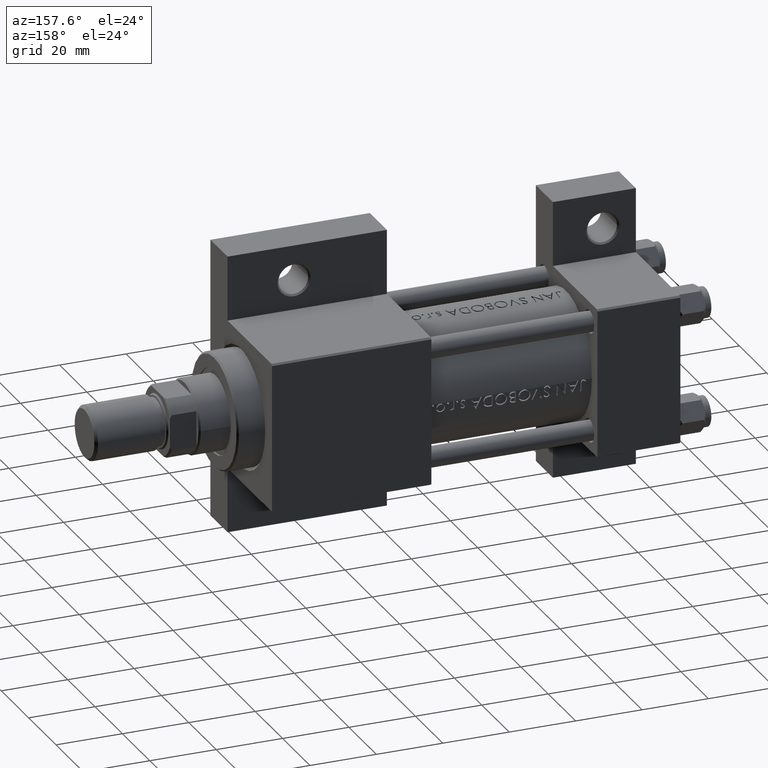
[diagram: clean part render]
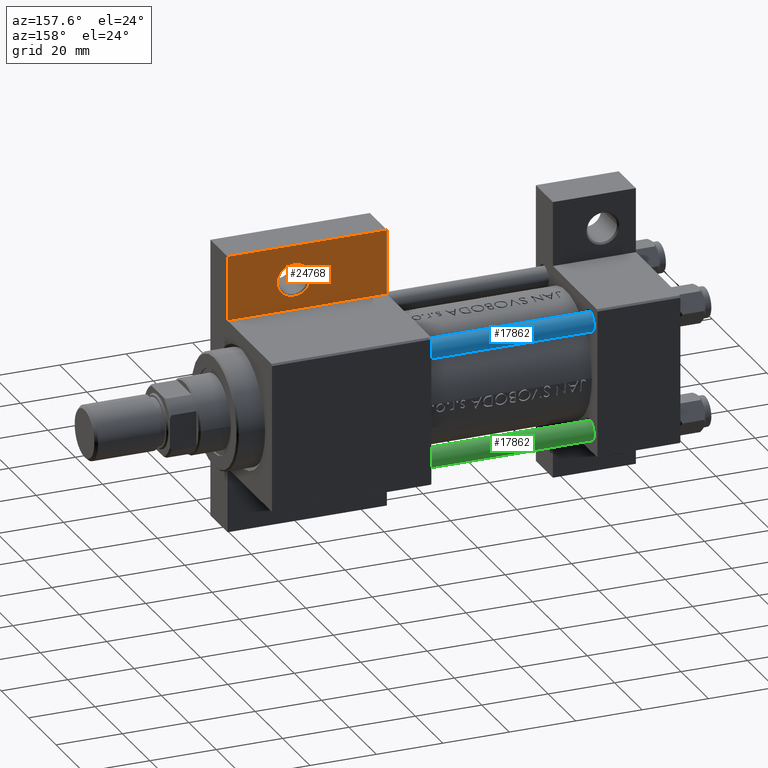
[diagram: same view with three faces highlighted in distinct colors, each labeled with its STEP entity id]
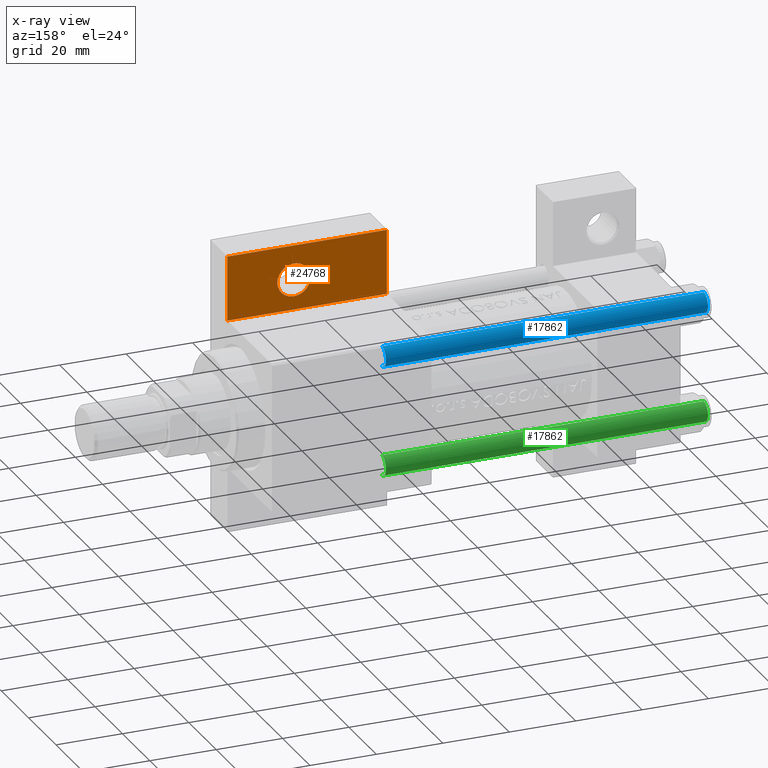
[diagram: x-ray of the same camera — body ghosted, the three highlighted faces saturated]
A machine part, auxiliary view with three faces highlighted in distinct colors.
The next image is the same camera in x-ray (body ghosted, the three faces saturated) — at least one of them is partly hidden behind the body in this view.
Their STEP definitions:

[orange] entity #24768 — the highlighted planar face has unit normal (0, -1, 0).
#1921 = EDGE_LOOP ( 'NONE', ( #2418, #32446, #43320, #26246 ) ) ;
#2033 = EDGE_CURVE ( 'NONE', #25079, #34180, #46135, .T. ) ;
#2090 = LINE ( 'NONE', #27820, #14011 ) ;
#2418 = ORIENTED_EDGE ( 'NONE', *, *, #42010, .F. ) ;
#2955 = DIRECTION ( 'NONE',  ( 0.000000000000000000, 0.000000000000000000, -1.000000000000000000 ) ) ;
#6773 = DIRECTION ( 'NONE',  ( -0.000000000000000000, -1.000000000000000000, -0.000000000000000000 ) ) ;
#8109 = AXIS2_PLACEMENT_3D ( 'NONE', #23204, #12511, #38006 ) ;
#8558 = CIRCLE ( 'NONE', #12432, 4.999500000000073108 ) ;
#8729 = VECTOR ( 'NONE', #6773, 1000.000000000000000 ) ;
#8855 = VERTEX_POINT ( 'NONE', #24066 ) ;
#8930 = EDGE_CURVE ( 'NONE', #38207, #8855, #21719, .T. ) ;
#8989 = EDGE_CURVE ( 'NONE', #8855, #38207, #8558, .T. ) ;
#9516 = CARTESIAN_POINT ( 'NONE',  ( 98.00049999999993133, -31.50000000000000000, -9.999999999999998224 ) ) ;
#10865 = LINE ( 'NONE', #14529, #8729 ) ;
#12432 = AXIS2_PLACEMENT_3D ( 'NONE', #14128, #2955, #17527 ) ;
#12511 = DIRECTION ( 'NONE',  ( 0.000000000000000000, 0.000000000000000000, -1.000000000000000000 ) ) ;
#12656 = EDGE_CURVE ( 'NONE', #36923, #29196, #2090, .T. ) ;
#12707 = VECTOR ( 'NONE', #41621, 1000.000000000000000 ) ;
#14011 = VECTOR ( 'NONE', #17624, 1000.000000000000000 ) ;
#14128 = CARTESIAN_POINT ( 'NONE',  ( 103.0000000000000142, -31.50000000000000000, -9.999999999999998224 ) ) ;
#14529 = CARTESIAN_POINT ( 'NONE',  ( 122.9999999999999858, -42.00000000000000711, -9.999999999999998224 ) ) ;
#15877 = CARTESIAN_POINT ( 'NONE',  ( 75.00000000000000000, -42.00000000000000711, -9.999999999999998224 ) ) ;
#17527 = DIRECTION ( 'NONE',  ( -1.000000000000000000, 0.000000000000000000, 0.000000000000000000 ) ) ;
#17624 = DIRECTION ( 'NONE',  ( -1.000000000000000000, -0.000000000000000000, -0.000000000000000000 ) ) ;
#17640 = ORIENTED_EDGE ( 'NONE', *, *, #8930, .T. ) ;
#18082 = VECTOR ( 'NONE', #27904, 1000.000000000000000 ) ;
#21719 = CIRCLE ( 'NONE', #40340, 4.999500000000073108 ) ;
#23111 = CARTESIAN_POINT ( 'NONE',  ( 75.00000000000000000, -42.00000000000000711, -9.999999999999998224 ) ) ;
#23204 = CARTESIAN_POINT ( 'NONE',  ( 0.000000000000000000, 0.000000000000000000, -9.999999999999998224 ) ) ;
#23793 = CARTESIAN_POINT ( 'NONE',  ( 75.00000000000001421, -22.50000000000000000, -9.999999999999998224 ) ) ;
#24066 = CARTESIAN_POINT ( 'NONE',  ( 107.9995000000000829, -31.50000000000000000, -9.999999999999998224 ) ) ;
#24768 = ADVANCED_FACE ( 'NONE', ( #30729, #42626 ), #45549, .F. ) ;
#25079 = VERTEX_POINT ( 'NONE', #38310 ) ;
#25603 = CARTESIAN_POINT ( 'NONE',  ( 122.9999999999999858, -42.00000000000000711, -9.999999999999998224 ) ) ;
#26131 = LINE ( 'NONE', #15877, #12707 ) ;
#26246 = ORIENTED_EDGE ( 'NONE', *, *, #12656, .F. ) ;
#27820 = CARTESIAN_POINT ( 'NONE',  ( 75.00000000000000000, -42.00000000000000711, -9.999999999999998224 ) ) ;
#27904 = DIRECTION ( 'NONE',  ( 1.000000000000000000, -1.445602896647340149E-16, 0.000000000000000000 ) ) ;
#28465 = CARTESIAN_POINT ( 'NONE',  ( 123.0000000000000142, -22.49999999999999645, -9.999999999999980460 ) ) ;
#29196 = VERTEX_POINT ( 'NONE', #23111 ) ;
#30729 = FACE_BOUND ( 'NONE', #38454, .T. ) ;
#32446 = ORIENTED_EDGE ( 'NONE', *, *, #2033, .F. ) ;
#34180 = VERTEX_POINT ( 'NONE', #28465 ) ;
#36923 = VERTEX_POINT ( 'NONE', #25603 ) ;
#38006 = DIRECTION ( 'NONE',  ( -1.000000000000000000, 0.000000000000000000, -0.000000000000000000 ) ) ;
#38207 = VERTEX_POINT ( 'NONE', #9516 ) ;
#38310 = CARTESIAN_POINT ( 'NONE',  ( 75.00000000000001421, -22.50000000000000000, -9.999999999999998224 ) ) ;
#38454 = EDGE_LOOP ( 'NONE', ( #47994, #17640 ) ) ;
#39137 = DIRECTION ( 'NONE',  ( -1.000000000000000000, 0.000000000000000000, 0.000000000000000000 ) ) ;
#40340 = AXIS2_PLACEMENT_3D ( 'NONE', #43042, #42793, #39137 ) ;
#41621 = DIRECTION ( 'NONE',  ( 7.116814260417666541E-16, 1.000000000000000000, 0.000000000000000000 ) ) ;
#42010 = EDGE_CURVE ( 'NONE', #34180, #36923, #10865, .T. ) ;
#42626 = FACE_OUTER_BOUND ( 'NONE', #1921, .T. ) ;
#42793 = DIRECTION ( 'NONE',  ( 0.000000000000000000, 0.000000000000000000, -1.000000000000000000 ) ) ;
#43042 = CARTESIAN_POINT ( 'NONE',  ( 103.0000000000000142, -31.50000000000000000, -9.999999999999998224 ) ) ;
#43320 = ORIENTED_EDGE ( 'NONE', *, *, #47946, .F. ) ;
#45549 = PLANE ( 'NONE',  #8109 ) ;
#46135 = LINE ( 'NONE', #23793, #18082 ) ;
#47946 = EDGE_CURVE ( 'NONE', #29196, #25079, #26131, .T. ) ;
#47994 = ORIENTED_EDGE ( 'NONE', *, *, #8989, .T. ) ;

[blue] entity #17862 — the highlighted cylindrical surface (edge-blend (fillet) strip) has radius 3 mm, axis along (-1, -0, -0).
#4482 = VERTEX_POINT ( 'NONE', #18512 ) ;
#5476 = ORIENTED_EDGE ( 'NONE', *, *, #28097, .T. ) ;
#6100 = DIRECTION ( 'NONE',  ( 1.000000000000000000, 0.000000000000000000, 0.000000000000000000 ) ) ;
#7516 = CARTESIAN_POINT ( 'NONE',  ( 3.000000000000000444, 3.673940397442060361E-16, 97.50000000000001421 ) ) ;
#7576 = LINE ( 'NONE', #14383, #18117 ) ;
#7955 = ORIENTED_EDGE ( 'NONE', *, *, #16685, .T. ) ;
#9787 = CARTESIAN_POINT ( 'NONE',  ( -3.000000000000000444, 0.000000000000000000, 0.5000000000000281997 ) ) ;
#10241 = CARTESIAN_POINT ( 'NONE',  ( 3.000000000000000444, 3.673940397442060361E-16, 98.00000000000000000 ) ) ;
#10752 = ORIENTED_EDGE ( 'NONE', *, *, #17824, .T. ) ;
#10951 = CARTESIAN_POINT ( 'NONE',  ( 0.000000000000000000, 0.000000000000000000, 98.00000000000000000 ) ) ;
#12646 = DIRECTION ( 'NONE',  ( 0.000000000000000000, 0.000000000000000000, -1.000000000000000000 ) ) ;
#13712 = DIRECTION ( 'NONE',  ( 1.000000000000000000, 0.000000000000000000, 0.000000000000000000 ) ) ;
#14383 = CARTESIAN_POINT ( 'NONE',  ( -3.000000000000000444, 0.000000000000000000, 98.00000000000000000 ) ) ;
#14856 = DIRECTION ( 'NONE',  ( -0.000000000000000000, -0.000000000000000000, -1.000000000000000000 ) ) ;
#16685 = EDGE_CURVE ( 'NONE', #37277, #34879, #42847, .T. ) ;
#17824 = EDGE_CURVE ( 'NONE', #18980, #37277, #47636, .T. ) ;
#17862 = ADVANCED_FACE ( 'NONE', ( #18470 ), #37166, .T. ) ;
#18117 = VECTOR ( 'NONE', #14856, 1000.000000000000000 ) ;
#18470 = FACE_OUTER_BOUND ( 'NONE', #33193, .T. ) ;
#18512 = CARTESIAN_POINT ( 'NONE',  ( -3.000000000000000444, 0.000000000000000000, 97.50000000000001421 ) ) ;
#18980 = VERTEX_POINT ( 'NONE', #7516 ) ;
#19188 = DIRECTION ( 'NONE',  ( -1.000000000000000000, 0.000000000000000000, 0.000000000000000000 ) ) ;
#22125 = DIRECTION ( 'NONE',  ( -0.000000000000000000, -0.000000000000000000, -1.000000000000000000 ) ) ;
#23771 = CARTESIAN_POINT ( 'NONE',  ( 3.000000000000000444, 3.673940397442060361E-16, 0.5000000000000281997 ) ) ;
#28097 = EDGE_CURVE ( 'NONE', #4482, #18980, #38417, .T. ) ;
#32643 = ORIENTED_EDGE ( 'NONE', *, *, #45028, .F. ) ;
#33193 = EDGE_LOOP ( 'NONE', ( #5476, #10752, #7955, #32643 ) ) ;
#34879 = VERTEX_POINT ( 'NONE', #9787 ) ;
#34968 = CARTESIAN_POINT ( 'NONE',  ( 0.000000000000000000, 0.000000000000000000, 97.50000000000001421 ) ) ;
#35785 = DIRECTION ( 'NONE',  ( -0.000000000000000000, -0.000000000000000000, 1.000000000000000000 ) ) ;
#36216 = DIRECTION ( 'NONE',  ( -0.000000000000000000, -0.000000000000000000, -1.000000000000000000 ) ) ;
#37166 = CYLINDRICAL_SURFACE ( 'NONE', #43679, 3.000000000000000444 ) ;
#37277 = VERTEX_POINT ( 'NONE', #23771 ) ;
#38417 = CIRCLE ( 'NONE', #41556, 3.000000000000000444 ) ;
#38969 = VECTOR ( 'NONE', #36216, 1000.000000000000000 ) ;
#40511 = AXIS2_PLACEMENT_3D ( 'NONE', #42845, #35785, #13712 ) ;
#41556 = AXIS2_PLACEMENT_3D ( 'NONE', #34968, #12646, #6100 ) ;
#42845 = CARTESIAN_POINT ( 'NONE',  ( 0.000000000000000000, 0.000000000000000000, 0.5000000000000281997 ) ) ;
#42847 = CIRCLE ( 'NONE', #40511, 3.000000000000000444 ) ;
#43679 = AXIS2_PLACEMENT_3D ( 'NONE', #10951, #22125, #19188 ) ;
#45028 = EDGE_CURVE ( 'NONE', #4482, #34879, #7576, .T. ) ;
#47636 = LINE ( 'NONE', #10241, #38969 ) ;

[green] entity #17862 — the highlighted cylindrical surface (edge-blend (fillet) strip) has radius 3 mm, axis along (1, -0, -0).
#4482 = VERTEX_POINT ( 'NONE', #18512 ) ;
#5476 = ORIENTED_EDGE ( 'NONE', *, *, #28097, .T. ) ;
#6100 = DIRECTION ( 'NONE',  ( 1.000000000000000000, 0.000000000000000000, 0.000000000000000000 ) ) ;
#7516 = CARTESIAN_POINT ( 'NONE',  ( 3.000000000000000444, 3.673940397442060361E-16, 97.50000000000001421 ) ) ;
#7576 = LINE ( 'NONE', #14383, #18117 ) ;
#7955 = ORIENTED_EDGE ( 'NONE', *, *, #16685, .T. ) ;
#9787 = CARTESIAN_POINT ( 'NONE',  ( -3.000000000000000444, 0.000000000000000000, 0.5000000000000281997 ) ) ;
#10241 = CARTESIAN_POINT ( 'NONE',  ( 3.000000000000000444, 3.673940397442060361E-16, 98.00000000000000000 ) ) ;
#10752 = ORIENTED_EDGE ( 'NONE', *, *, #17824, .T. ) ;
#10951 = CARTESIAN_POINT ( 'NONE',  ( 0.000000000000000000, 0.000000000000000000, 98.00000000000000000 ) ) ;
#12646 = DIRECTION ( 'NONE',  ( 0.000000000000000000, 0.000000000000000000, -1.000000000000000000 ) ) ;
#13712 = DIRECTION ( 'NONE',  ( 1.000000000000000000, 0.000000000000000000, 0.000000000000000000 ) ) ;
#14383 = CARTESIAN_POINT ( 'NONE',  ( -3.000000000000000444, 0.000000000000000000, 98.00000000000000000 ) ) ;
#14856 = DIRECTION ( 'NONE',  ( -0.000000000000000000, -0.000000000000000000, -1.000000000000000000 ) ) ;
#16685 = EDGE_CURVE ( 'NONE', #37277, #34879, #42847, .T. ) ;
#17824 = EDGE_CURVE ( 'NONE', #18980, #37277, #47636, .T. ) ;
#17862 = ADVANCED_FACE ( 'NONE', ( #18470 ), #37166, .T. ) ;
#18117 = VECTOR ( 'NONE', #14856, 1000.000000000000000 ) ;
#18470 = FACE_OUTER_BOUND ( 'NONE', #33193, .T. ) ;
#18512 = CARTESIAN_POINT ( 'NONE',  ( -3.000000000000000444, 0.000000000000000000, 97.50000000000001421 ) ) ;
#18980 = VERTEX_POINT ( 'NONE', #7516 ) ;
#19188 = DIRECTION ( 'NONE',  ( -1.000000000000000000, 0.000000000000000000, 0.000000000000000000 ) ) ;
#22125 = DIRECTION ( 'NONE',  ( -0.000000000000000000, -0.000000000000000000, -1.000000000000000000 ) ) ;
#23771 = CARTESIAN_POINT ( 'NONE',  ( 3.000000000000000444, 3.673940397442060361E-16, 0.5000000000000281997 ) ) ;
#28097 = EDGE_CURVE ( 'NONE', #4482, #18980, #38417, .T. ) ;
#32643 = ORIENTED_EDGE ( 'NONE', *, *, #45028, .F. ) ;
#33193 = EDGE_LOOP ( 'NONE', ( #5476, #10752, #7955, #32643 ) ) ;
#34879 = VERTEX_POINT ( 'NONE', #9787 ) ;
#34968 = CARTESIAN_POINT ( 'NONE',  ( 0.000000000000000000, 0.000000000000000000, 97.50000000000001421 ) ) ;
#35785 = DIRECTION ( 'NONE',  ( -0.000000000000000000, -0.000000000000000000, 1.000000000000000000 ) ) ;
#36216 = DIRECTION ( 'NONE',  ( -0.000000000000000000, -0.000000000000000000, -1.000000000000000000 ) ) ;
#37166 = CYLINDRICAL_SURFACE ( 'NONE', #43679, 3.000000000000000444 ) ;
#37277 = VERTEX_POINT ( 'NONE', #23771 ) ;
#38417 = CIRCLE ( 'NONE', #41556, 3.000000000000000444 ) ;
#38969 = VECTOR ( 'NONE', #36216, 1000.000000000000000 ) ;
#40511 = AXIS2_PLACEMENT_3D ( 'NONE', #42845, #35785, #13712 ) ;
#41556 = AXIS2_PLACEMENT_3D ( 'NONE', #34968, #12646, #6100 ) ;
#42845 = CARTESIAN_POINT ( 'NONE',  ( 0.000000000000000000, 0.000000000000000000, 0.5000000000000281997 ) ) ;
#42847 = CIRCLE ( 'NONE', #40511, 3.000000000000000444 ) ;
#43679 = AXIS2_PLACEMENT_3D ( 'NONE', #10951, #22125, #19188 ) ;
#45028 = EDGE_CURVE ( 'NONE', #4482, #34879, #7576, .T. ) ;
#47636 = LINE ( 'NONE', #10241, #38969 ) ;